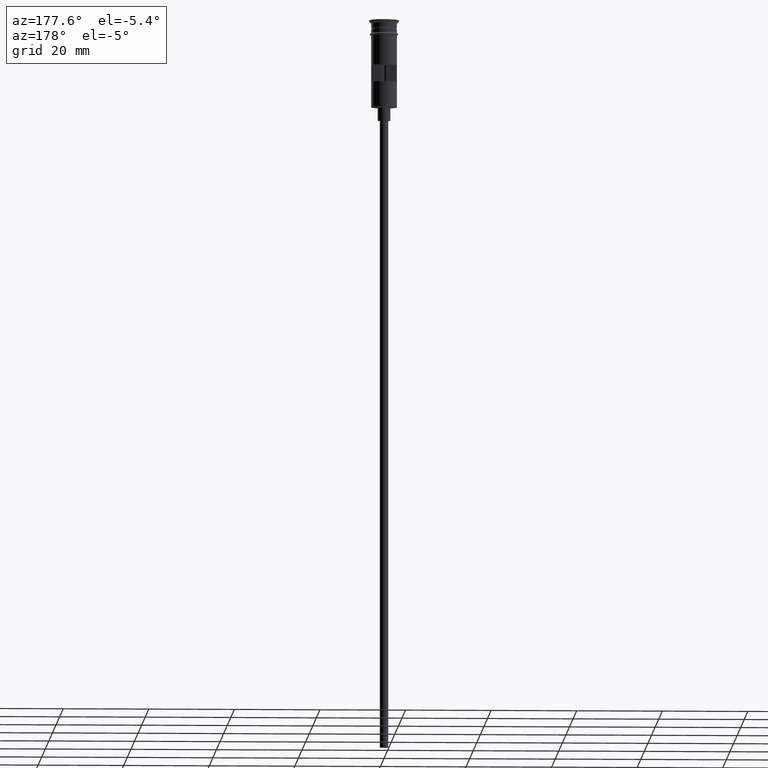
[diagram: clean part render]
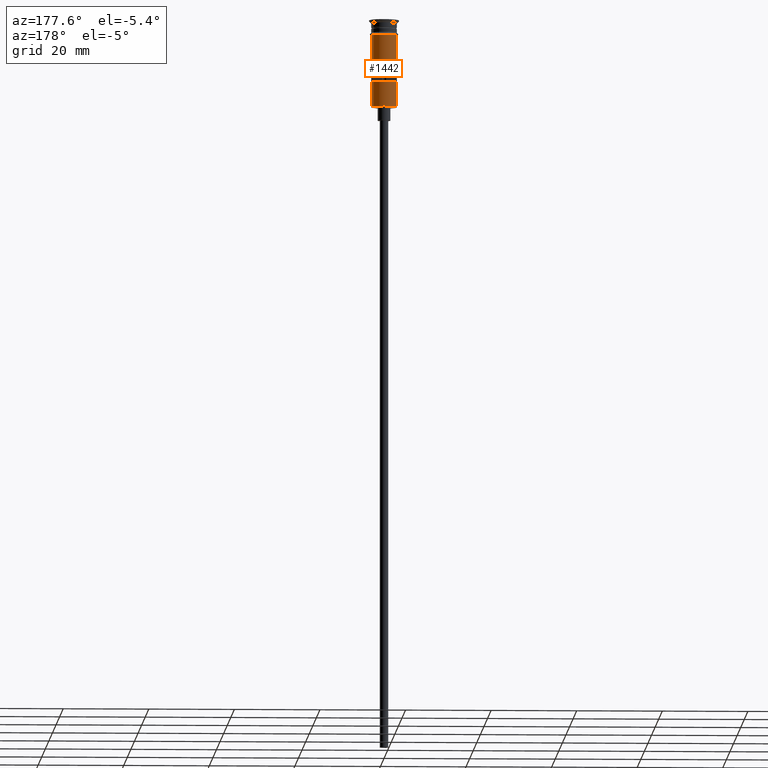
[diagram: same view with one face highlighted and labeled with its STEP entity id]
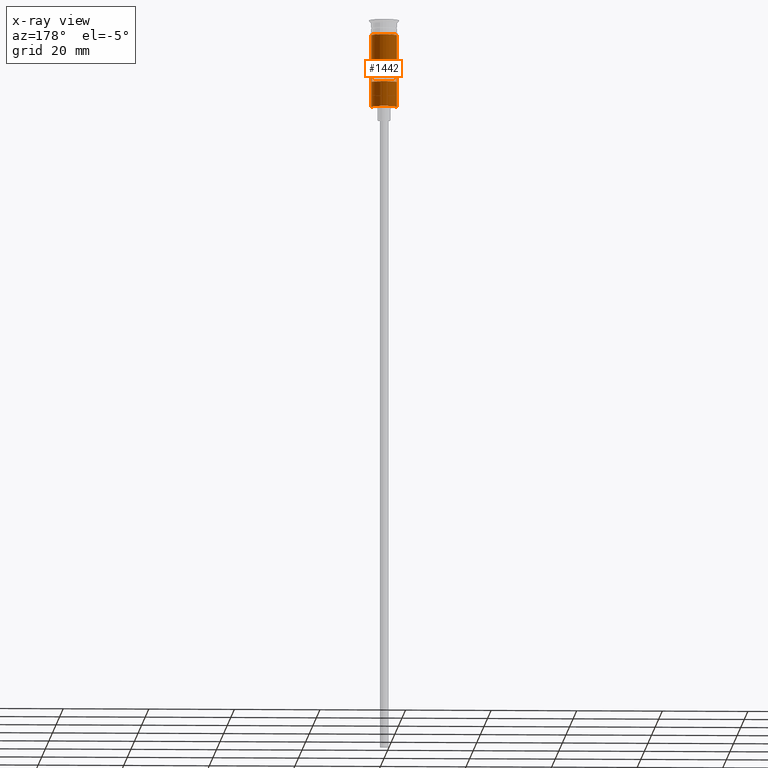
[diagram: x-ray of the same camera — body ghosted, the highlighted face saturated]
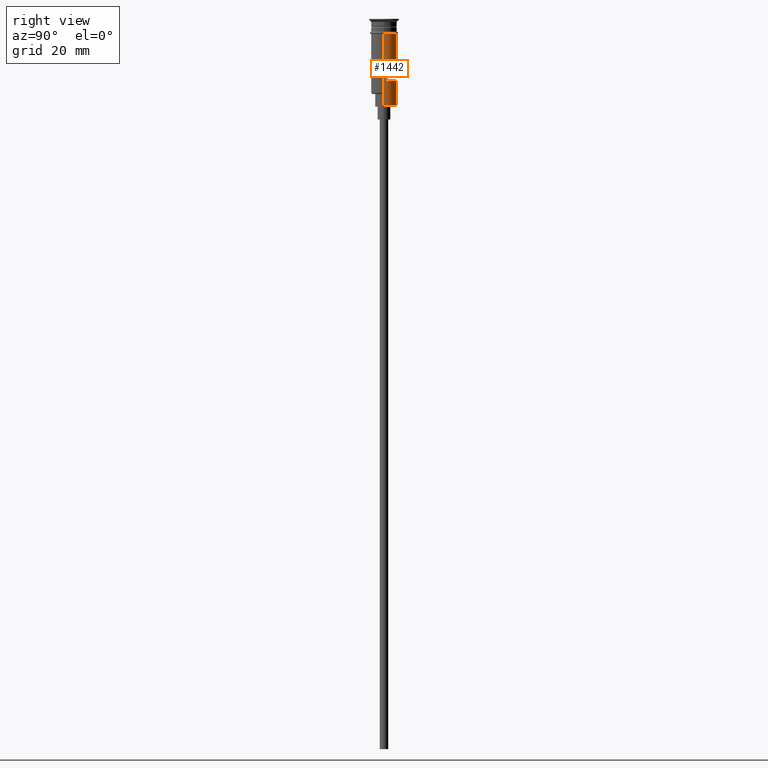
[diagram: same view with one face highlighted and labeled with its STEP entity id]
A machine part, auxiliary view. The second image highlights one B-rep face of the part: STEP entity #1442.
The next image is the same camera in x-ray: the body ghosted, the highlighted face saturated — about 0% of this face is hidden behind the body in this view.
A second angle (right view) of the same face is appended — the face is thin or edge-on in the first view.
In plain terms, the highlighted cylindrical surface (edge-blend (fillet) strip) has radius 3 mm, axis along (-0, -0, 1).
Its self-contained STEP definition (entity closure, byte-faithful):
#23 = LINE ( 'NONE', #1522, #493 ) ;
#35 = VECTOR ( 'NONE', #1091, 1000.000000000000000 ) ;
#42 = CARTESIAN_POINT ( 'NONE',  ( 2.999999999999996891, 3.673940397442055924E-16, -17.30000000000000782 ) ) ;
#66 = VERTEX_POINT ( 'NONE', #985 ) ;
#107 = EDGE_CURVE ( 'NONE', #327, #1331, #821, .T. ) ;
#122 = VERTEX_POINT ( 'NONE', #1320 ) ;
#137 = CIRCLE ( 'NONE', #680, 2.999999999999996891 ) ;
#148 = CARTESIAN_POINT ( 'NONE',  ( -2.939387691339810260, 0.5999999999999994227, -14.50000000000000000 ) ) ;
#157 = VERTEX_POINT ( 'NONE', #850 ) ;
#165 = ORIENTED_EDGE ( 'NONE', *, *, #1494, .T. ) ;
#183 = EDGE_LOOP ( 'NONE', ( #856, #165, #737, #1247, #202, #767 ) ) ;
#202 = ORIENTED_EDGE ( 'NONE', *, *, #569, .F. ) ;
#220 = VECTOR ( 'NONE', #812, 1000.000000000000000 ) ;
#229 = CARTESIAN_POINT ( 'NONE',  ( 0.000000000000000000, 0.000000000000000000, -20.29999999999995808 ) ) ;
#239 = CARTESIAN_POINT ( 'NONE',  ( 2.999999999999996891, 0.000000000000000000, 0.000000000000000000 ) ) ;
#255 = DIRECTION ( 'NONE',  ( 1.000000000000000000, 0.000000000000000000, 0.000000000000000000 ) ) ;
#266 = EDGE_CURVE ( 'NONE', #66, #518, #23, .T. ) ;
#301 = VERTEX_POINT ( 'NONE', #1255 ) ;
#306 = CARTESIAN_POINT ( 'NONE',  ( 0.000000000000000000, 0.000000000000000000, -10.50000000000000000 ) ) ;
#316 = EDGE_CURVE ( 'NONE', #122, #778, #137, .T. ) ;
#324 = LINE ( 'NONE', #331, #35 ) ;
#327 = VERTEX_POINT ( 'NONE', #42 ) ;
#331 = CARTESIAN_POINT ( 'NONE',  ( 2.999999999999995115, 3.673940397442053952E-16, -20.50000000000000000 ) ) ;
#334 = EDGE_CURVE ( 'NONE', #1574, #1531, #1335, .T. ) ;
#347 = EDGE_CURVE ( 'NONE', #778, #1574, #931, .T. ) ;
#373 = FACE_BOUND ( 'NONE', #1232, .T. ) ;
#410 = DIRECTION ( 'NONE',  ( 0.000000000000000000, 0.000000000000000000, 1.000000000000000000 ) ) ;
#450 = CIRCLE ( 'NONE', #1133, 2.999999999999996891 ) ;
#469 = AXIS2_PLACEMENT_3D ( 'NONE', #787, #410, #543 ) ;
#471 = CIRCLE ( 'NONE', #1029, 2.999999999999998668 ) ;
#493 = VECTOR ( 'NONE', #613, 1000.000000000000000 ) ;
#518 = VERTEX_POINT ( 'NONE', #1108 ) ;
#543 = DIRECTION ( 'NONE',  ( -1.000000000000000000, 0.000000000000000000, 0.000000000000000000 ) ) ;
#568 = DIRECTION ( 'NONE',  ( 1.000000000000000000, 0.000000000000000000, 0.000000000000000000 ) ) ;
#569 = EDGE_CURVE ( 'NONE', #301, #327, #324, .T. ) ;
#572 = ORIENTED_EDGE ( 'NONE', *, *, #334, .F. ) ;
#586 = VECTOR ( 'NONE', #1119, 1000.000000000000000 ) ;
#610 = CARTESIAN_POINT ( 'NONE',  ( 0.000000000000000000, 0.000000000000000000, -3.499999999999998668 ) ) ;
#613 = DIRECTION ( 'NONE',  ( -0.000000000000000000, -0.000000000000000000, 1.000000000000000000 ) ) ;
#680 = AXIS2_PLACEMENT_3D ( 'NONE', #306, #1544, #568 ) ;
#690 = CARTESIAN_POINT ( 'NONE',  ( 2.939387691339810260, 0.5999999999999994227, 0.000000000000000000 ) ) ;
#708 = VECTOR ( 'NONE', #1186, 1000.000000000000000 ) ;
#728 = VECTOR ( 'NONE', #1458, 1000.000000000000000 ) ;
#737 = ORIENTED_EDGE ( 'NONE', *, *, #1018, .F. ) ;
#762 = AXIS2_PLACEMENT_3D ( 'NONE', #877, #1142, #255 ) ;
#767 = ORIENTED_EDGE ( 'NONE', *, *, #980, .T. ) ;
#778 = VERTEX_POINT ( 'NONE', #1182 ) ;
#781 = ORIENTED_EDGE ( 'NONE', *, *, #1327, .F. ) ;
#787 = CARTESIAN_POINT ( 'NONE',  ( 0.000000000000000000, 0.000000000000000000, -14.50000000000000000 ) ) ;
#797 = CARTESIAN_POINT ( 'NONE',  ( 2.939387691339810260, 0.5999999999999994227, -14.50000000000000000 ) ) ;
#812 = DIRECTION ( 'NONE',  ( -0.000000000000000000, -0.000000000000000000, 1.000000000000000000 ) ) ;
#821 = LINE ( 'NONE', #239, #728 ) ;
#850 = CARTESIAN_POINT ( 'NONE',  ( -2.999999999999999112, 3.673940397442058389E-16, -3.499999999999998668 ) ) ;
#856 = ORIENTED_EDGE ( 'NONE', *, *, #266, .T. ) ;
#877 = CARTESIAN_POINT ( 'NONE',  ( 0.000000000000000000, 0.000000000000000000, 0.000000000000000000 ) ) ;
#883 = DIRECTION ( 'NONE',  ( 1.000000000000000000, 0.000000000000000000, 0.000000000000000000 ) ) ;
#931 = LINE ( 'NONE', #690, #708 ) ;
#967 = DIRECTION ( 'NONE',  ( -1.000000000000000000, 0.000000000000000000, 0.000000000000000000 ) ) ;
#980 = EDGE_CURVE ( 'NONE', #301, #66, #450, .T. ) ;
#983 = CARTESIAN_POINT ( 'NONE',  ( 2.999999999999998668, 0.000000000000000000, -3.499999999999998668 ) ) ;
#985 = CARTESIAN_POINT ( 'NONE',  ( -2.999999999999995115, 0.000000000000000000, -20.29999999999995808 ) ) ;
#993 = LINE ( 'NONE', #1496, #586 ) ;
#1006 = DIRECTION ( 'NONE',  ( -0.000000000000000000, -0.000000000000000000, 1.000000000000000000 ) ) ;
#1007 = CYLINDRICAL_SURFACE ( 'NONE', #762, 2.999999999999996891 ) ;
#1018 = EDGE_CURVE ( 'NONE', #1331, #157, #471, .T. ) ;
#1029 = AXIS2_PLACEMENT_3D ( 'NONE', #610, #1006, #883 ) ;
#1091 = DIRECTION ( 'NONE',  ( -0.000000000000000000, -0.000000000000000000, 1.000000000000000000 ) ) ;
#1108 = CARTESIAN_POINT ( 'NONE',  ( -2.999999999999995115, 0.000000000000000000, -17.30000000000000782 ) ) ;
#1119 = DIRECTION ( 'NONE',  ( -0.000000000000000000, -0.000000000000000000, 1.000000000000000000 ) ) ;
#1133 = AXIS2_PLACEMENT_3D ( 'NONE', #229, #1215, #967 ) ;
#1140 = ORIENTED_EDGE ( 'NONE', *, *, #316, .F. ) ;
#1142 = DIRECTION ( 'NONE',  ( -0.000000000000000000, -0.000000000000000000, 1.000000000000000000 ) ) ;
#1182 = CARTESIAN_POINT ( 'NONE',  ( 2.939387691339810260, 0.5999999999999994227, -10.50000000000000000 ) ) ;
#1186 = DIRECTION ( 'NONE',  ( 0.000000000000000000, 0.000000000000000000, -1.000000000000000000 ) ) ;
#1215 = DIRECTION ( 'NONE',  ( 0.000000000000000000, 0.000000000000000000, 1.000000000000000000 ) ) ;
#1232 = EDGE_LOOP ( 'NONE', ( #1391, #1140, #781, #572 ) ) ;
#1247 = ORIENTED_EDGE ( 'NONE', *, *, #107, .F. ) ;
#1255 = CARTESIAN_POINT ( 'NONE',  ( 2.999999999999995115, 3.673940397442053952E-16, -20.29999999999995808 ) ) ;
#1311 = CARTESIAN_POINT ( 'NONE',  ( -2.939387691339810260, 0.5999999999999994227, 0.000000000000000000 ) ) ;
#1320 = CARTESIAN_POINT ( 'NONE',  ( -2.939387691339810260, 0.5999999999999994227, -10.50000000000000000 ) ) ;
#1327 = EDGE_CURVE ( 'NONE', #1531, #122, #1433, .T. ) ;
#1331 = VERTEX_POINT ( 'NONE', #983 ) ;
#1335 = CIRCLE ( 'NONE', #469, 2.999999999999996891 ) ;
#1369 = FACE_OUTER_BOUND ( 'NONE', #183, .T. ) ;
#1391 = ORIENTED_EDGE ( 'NONE', *, *, #347, .F. ) ;
#1433 = LINE ( 'NONE', #1311, #220 ) ;
#1442 = ADVANCED_FACE ( 'NONE', ( #373, #1369 ), #1007, .T. ) ;
#1458 = DIRECTION ( 'NONE',  ( -0.000000000000000000, -0.000000000000000000, 1.000000000000000000 ) ) ;
#1494 = EDGE_CURVE ( 'NONE', #518, #157, #993, .T. ) ;
#1496 = CARTESIAN_POINT ( 'NONE',  ( -2.999999999999996891, 3.673940397442055924E-16, 0.000000000000000000 ) ) ;
#1522 = CARTESIAN_POINT ( 'NONE',  ( -2.999999999999995115, 0.000000000000000000, -20.50000000000000000 ) ) ;
#1531 = VERTEX_POINT ( 'NONE', #148 ) ;
#1544 = DIRECTION ( 'NONE',  ( -0.000000000000000000, 0.000000000000000000, -1.000000000000000000 ) ) ;
#1574 = VERTEX_POINT ( 'NONE', #797 ) ;